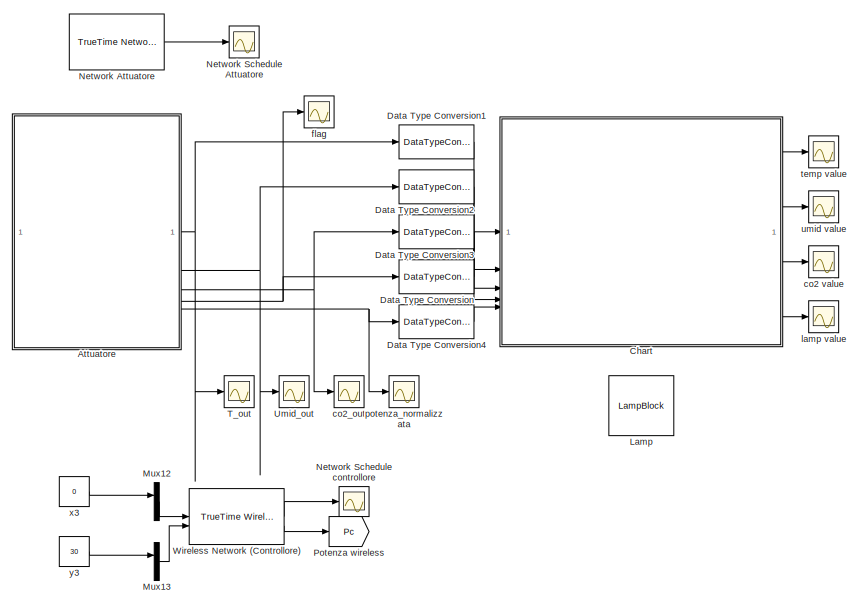
[diagram: root canvas - part 1/2, right side, full height]
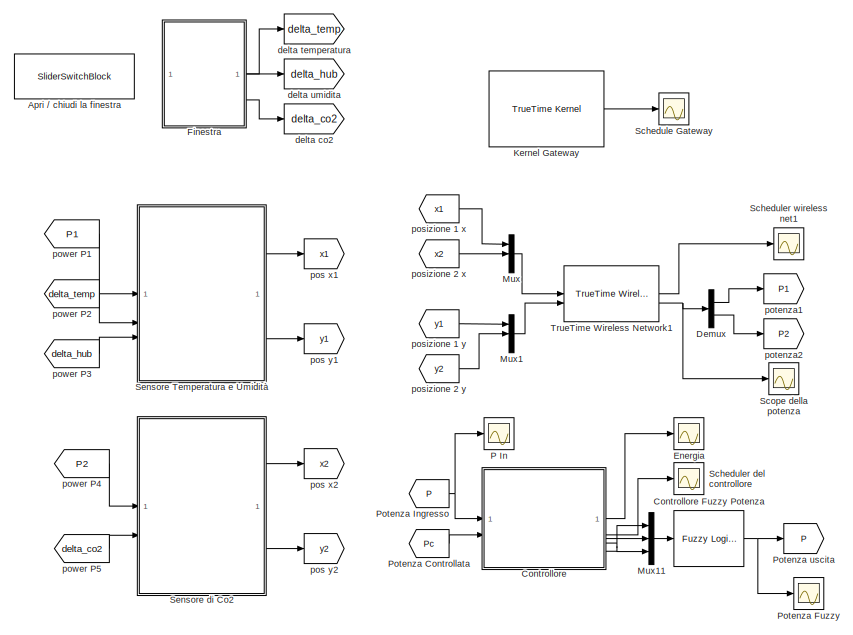
[diagram: root canvas - part 2/2, left side, full height]
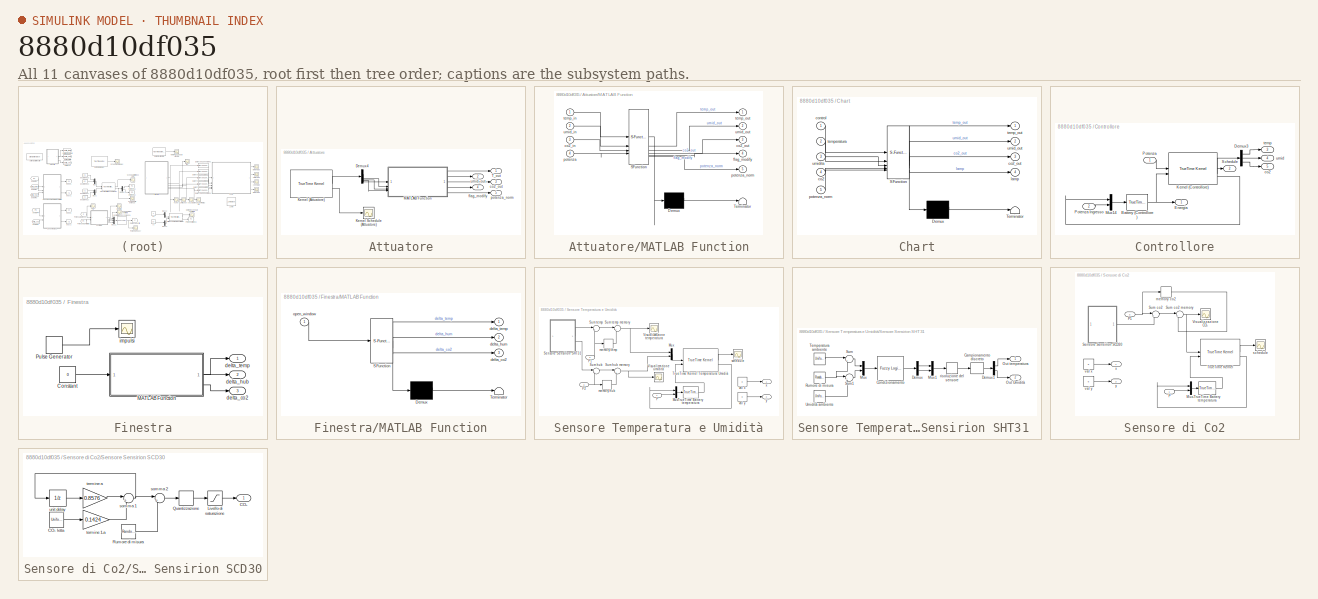
[diagram: thumbnail index - all 11 canvases of the model, root first then tree order]
MODEL slx_8880d10df035
KIND model
CONFIG AbsTol = auto
CONFIG EnableMultiTasking = off
CONFIG FixedStep = auto
CONFIG MaxStep = auto
CONFIG MinStep = auto
CONFIG RelTol = 1e-3
CONFIG SampleTimeConstraint = Unconstrained
CONFIG SolverName = VariableStepAuto
CONFIG StartTime = 0.0
CONFIG StopTime = 20
BLOCK [SliderSwitchBlock] Apri // chiudi la finestra
BLOCK [SubSystem] Attuatore
BLOCK [Demux] Attuatore/Demux4
BLOCK [Reference] Attuatore/Kernel (Attuatore)  REF=truetime/TrueTime Kernel  (lib defined in slx_0362a698a4ec)
  SourceBlock = truetime/TrueTime Kernel
BLOCK [Scope] Attuatore/Kernel Schedule (Attuatore)
  Floating = off
  NumInputPorts = 1
  ScopeSpecificationString = Simulink.scopes.TimeScopeBlockCfg('CurrentConfiguration', extmgr.ConfigurationSet(extmgr.Configuration('Core','General UI',true,'DisplayFullSourceName',false,'ShowMainToolbar',true),extmgr.Configuration('Sources','WiredSimulink',true,'DataLogging',false,'DataLoggingVariableName','ScopeData1','DataLoggingLimitDataPoints',false,'DataLoggingMaxPoints','5000','DataLoggingDecimateData',false,'DataLoggi...<+1535ch>
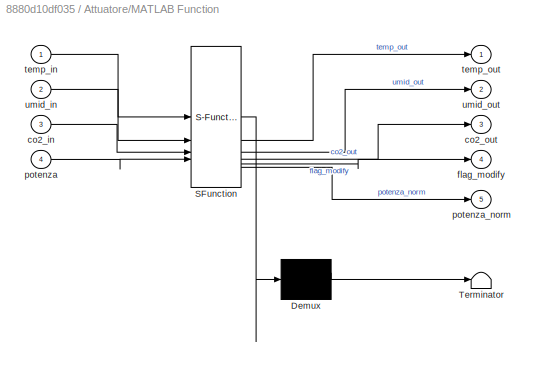
BLOCK [SubSystem] Attuatore/MATLAB Function
  ErrorFcn = Stateflow.Translate.translate
  PermitHierarchicalResolution = ExplicitOnly
  SFBlockType = MATLAB Function
  TreatAsAtomicUnit = on
BLOCK [Demux] Attuatore/MATLAB Function/ Demux 
  Outputs = 1
BLOCK [S-Function] Attuatore/MATLAB Function/ SFunction 
  EnableBusSupport = off
  FunctionName = sf_sfun
  PortCounts = [4 6]
  SFcnIsStateOwnerBlock = off
  SFunctionDeploymentMode = off
  Tag = Stateflow S-Function 3
BLOCK [Terminator] Attuatore/MATLAB Function/ Terminator 
BLOCK [Inport] Attuatore/MATLAB Function/co2_in
  Port = 3
BLOCK [Outport] Attuatore/MATLAB Function/co2_out
  Port = 3
BLOCK [Outport] Attuatore/MATLAB Function/flag_modify
  Port = 4
BLOCK [Inport] Attuatore/MATLAB Function/potenza
  Port = 4
BLOCK [Outport] Attuatore/MATLAB Function/potenza_norm
  Port = 5
BLOCK [Inport] Attuatore/MATLAB Function/temp_in
BLOCK [Outport] Attuatore/MATLAB Function/temp_out
BLOCK [Inport] Attuatore/MATLAB Function/umid_in
  Port = 2
BLOCK [Outport] Attuatore/MATLAB Function/umid_out
  Port = 2
BLOCK [Outport] Attuatore/T_out
BLOCK [Outport] Attuatore/co2_out
  Port = 3
BLOCK [Outport] Attuatore/flag_modify
  Port = 4
BLOCK [Outport] Attuatore/potenza_norm
  Port = 5
BLOCK [Outport] Attuatore/umid_out
  Port = 2
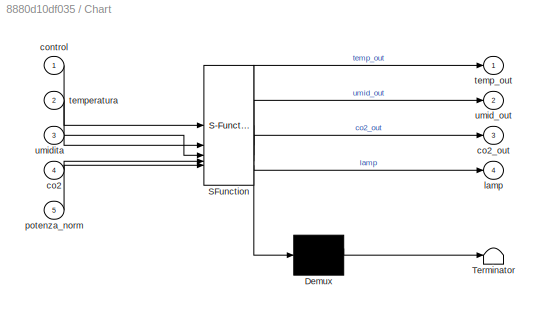
BLOCK [SubSystem] Chart
  ErrorFcn = Stateflow.Translate.translate
  PermitHierarchicalResolution = ExplicitOnly
  PortSchema = {"entries":[{"content":{"sides":[{"content":{"connectorIds":["In2","In3","In4","In1","In5"]},"type":"ConnectorPlacement.EquallySpacedRectSide","uuid":"3020dda5-3986-4acb-91a7-32414a76f8f2"},{"content":{"connectorIds":["Out1","Out2","Out3","Out4"],"side":"RIGHT"},"type":"ConnectorPlacement.EquallySpacedRectSide","uuid":"ed764817-7f74-49da-be9c-3f2773007b92"},{"content":{"side":"TOP"},"type":"Connec...<+267ch>
  SFBlockType = Chart
  TreatAsAtomicUnit = on
BLOCK [Demux] Chart/ Demux 
  Outputs = 1
BLOCK [S-Function] Chart/ SFunction 
  EnableBusSupport = off
  FunctionName = sf_sfun
  PortCounts = [5 5]
  SFcnIsStateOwnerBlock = off
  SFunctionDeploymentMode = off
  Tag = Stateflow S-Function 1
BLOCK [Terminator] Chart/ Terminator 
BLOCK [Inport] Chart/co2
  Port = 4
BLOCK [Outport] Chart/co2_out
  Port = 3
BLOCK [Inport] Chart/control
BLOCK [Outport] Chart/lamp
  Port = 4
BLOCK [Inport] Chart/potenza_norm
  Port = 5
BLOCK [Outport] Chart/temp_out
BLOCK [Inport] Chart/temperatura
  Port = 2
BLOCK [Outport] Chart/umid_out
  Port = 2
BLOCK [Inport] Chart/umidita
  Port = 3
BLOCK [SubSystem] Controllore
BLOCK [Reference] Controllore Fuzzy Potenza  REF=fuzblock/Fuzzy Logic   (lib defined in mdl_858b3b3e7478)
Controller
  SourceBlock = fuzblock/Fuzzy Logic \nController
  SourceType = Fuzzy Inference System
BLOCK [Reference] Controllore/Battery (Controllore)  REF=truetime/TrueTime Battery  (lib defined in slx_0362a698a4ec)
  SourceBlock = truetime/TrueTime Battery
BLOCK [Demux] Controllore/Demux3
  Outputs = 3
BLOCK [Outport] Controllore/Energia
BLOCK [Reference] Controllore/Kernel (Controllore)  REF=truetime/TrueTime Kernel  (lib defined in slx_0362a698a4ec)
  SourceBlock = truetime/TrueTime Kernel
BLOCK [Mux] Controllore/Mux14
  DisplayOption = bar
  Inputs = 2
BLOCK [Inport] Controllore/Potenza
BLOCK [Inport] Controllore/Potenza Ingresso
  Port = 2
BLOCK [Outport] Controllore/Schedule
  Port = 2
BLOCK [Outport] Controllore/co2
  NameLocation = right
  Port = 5
BLOCK [Outport] Controllore/temp
  NameLocation = right
  Port = 3
BLOCK [Outport] Controllore/umid
  NameLocation = right
  Port = 4
BLOCK [DataTypeConversion] Data Type Conversion
  OutDataTypeStr = uint8
  OutMax = [5]
  OutMin = [0]
  RndMeth = Floor
  SaturateOnIntegerOverflow = off
BLOCK [DataTypeConversion] Data Type Conversion1
  OutDataTypeStr = double
  OutMax = [5]
  OutMin = [0]
  RndMeth = Floor
  SaturateOnIntegerOverflow = off
BLOCK [DataTypeConversion] Data Type Conversion2
  OutDataTypeStr = double
  OutMax = [5]
  OutMin = [0]
  RndMeth = Floor
  SaturateOnIntegerOverflow = off
BLOCK [DataTypeConversion] Data Type Conversion3
  OutDataTypeStr = double
  OutMax = [5]
  OutMin = [0]
  RndMeth = Floor
  SaturateOnIntegerOverflow = off
BLOCK [DataTypeConversion] Data Type Conversion4
  OutDataTypeStr = double
  OutMax = [5]
  OutMin = [0]
  RndMeth = Floor
  SaturateOnIntegerOverflow = off
BLOCK [Demux] Demux
  Outputs = 2
BLOCK [Scope] Energia
  Floating = off
  NumInputPorts = 1
  ScopeSpecificationString = Simulink.scopes.TimeScopeBlockCfg('CurrentConfiguration', extmgr.ConfigurationSet(extmgr.Configuration('Core','General UI',true,'DisplayFullSourceName',false,'ShowMainToolbar',true),extmgr.Configuration('Sources','WiredSimulink',true,'DataLogging',false,'DataLoggingVariableName','ScopeData10','DataLoggingLimitDataPoints',false,'DataLoggingMaxPoints','5000','DataLoggingDecimateData',false,'DataLogg...<+2001ch>
BLOCK [SubSystem] Finestra
BLOCK [Constant] Finestra/Constant
  Value = 0
BLOCK [SubSystem] Finestra/MATLAB Function
  ErrorFcn = Stateflow.Translate.translate
  PermitHierarchicalResolution = ExplicitOnly
  SFBlockType = MATLAB Function
  TreatAsAtomicUnit = on
BLOCK [Demux] Finestra/MATLAB Function/ Demux 
  Outputs = 1
BLOCK [S-Function] Finestra/MATLAB Function/ SFunction 
  EnableBusSupport = off
  FunctionName = sf_sfun
  PortCounts = [1 4]
  SFcnIsStateOwnerBlock = off
  SFunctionDeploymentMode = off
  Tag = Stateflow S-Function 2
BLOCK [Terminator] Finestra/MATLAB Function/ Terminator 
BLOCK [Outport] Finestra/MATLAB Function/delta_co2
  Port = 3
BLOCK [Outport] Finestra/MATLAB Function/delta_hum
  Port = 2
BLOCK [Outport] Finestra/MATLAB Function/delta_temp
BLOCK [Inport] Finestra/MATLAB Function/open_window
BLOCK [DiscretePulseGenerator] Finestra/Pulse Generator
  Commented = on
  Period = 10
  PulseType = Time based
  PulseWidth = 5
BLOCK [Outport] Finestra/delta_co2
  Port = 3
BLOCK [Outport] Finestra/delta_hub
  Port = 2
BLOCK [Outport] Finestra/delta_temp
BLOCK [Scope] Finestra/impulsi
  Floating = off
  NumInputPorts = 1
  ScopeSpecificationString = Simulink.scopes.TimeScopeBlockCfg('CurrentConfiguration', extmgr.ConfigurationSet(extmgr.Configuration('Core','General UI',true,'DisplayFullSourceName',false,'ShowMainToolbar',true),extmgr.Configuration('Sources','WiredSimulink',true,'DataLogging',false,'DataLoggingVariableName','ScopeData17','DataLoggingLimitDataPoints',false,'DataLoggingMaxPoints','5000','DataLoggingDecimateData',false,'DataLogg...<+1536ch>
BLOCK [Reference] Kernel Gateway  REF=truetime/TrueTime Kernel  (lib defined in slx_0362a698a4ec)
  SourceBlock = truetime/TrueTime Kernel
BLOCK [LampBlock] Lamp
  LabelPosition = Hide
BLOCK [Mux] Mux
  DisplayOption = bar
  Inputs = 3
BLOCK [Mux] Mux1
  DisplayOption = bar
  Inputs = 3
BLOCK [Mux] Mux11
  DisplayOption = bar
  Inputs = 3
BLOCK [Mux] Mux12
  DisplayOption = bar
  Inputs = 2
BLOCK [Mux] Mux13
  DisplayOption = bar
  Inputs = 2
BLOCK [Reference] Network Attuatore  REF=truetime/TrueTime Network  (lib defined in slx_0362a698a4ec)
  SourceBlock = truetime/TrueTime Network
  SourceType = Real-Time Network
BLOCK [Scope] Network Schedule Attuatore
  Floating = off
  NumInputPorts = 1
  ScopeSpecificationString = Simulink.scopes.TimeScopeBlockCfg('CurrentConfiguration', extmgr.ConfigurationSet(extmgr.Configuration('Core','General UI',true,'DisplayFullSourceName',false,'ShowMainToolbar',true),extmgr.Configuration('Sources','WiredSimulink',true,'DataLogging',false,'DataLoggingVariableName','ScopeData13','DataLoggingLimitDataPoints',false,'DataLoggingMaxPoints','5000','DataLoggingDecimateData',false,'DataLogg...<+2002ch>
BLOCK [Scope] Network Schedule controllore
  Floating = off
  NameLocation = top
  NumInputPorts = 1
  ScopeSpecificationString = Simulink.scopes.TimeScopeBlockCfg('CurrentConfiguration', extmgr.ConfigurationSet(extmgr.Configuration('Core','General UI',true,'DisplayFullSourceName',false,'ShowMainToolbar',true,'FigureColor','[0.156862745098039 0.156862745098039 0.156862745098039]'),extmgr.Configuration('Sources','WiredSimulink',true,'DataLogging',true,'DataLoggingVariableName','ScopeData8','DataLoggingLimitDataPoints',false,'...<+2092ch>
BLOCK [Scope] P In
  Floating = off
  NumInputPorts = 1
  ScopeSpecificationString = Simulink.scopes.TimeScopeBlockCfg('CurrentConfiguration', extmgr.ConfigurationSet(extmgr.Configuration('Core','General UI',true,'DisplayFullSourceName',false,'ShowMainToolbar',true),extmgr.Configuration('Sources','WiredSimulink',true,'DataLogging',false,'DataLoggingVariableName','ScopeData9','DataLoggingLimitDataPoints',false,'DataLoggingMaxPoints','5000','DataLoggingDecimateData',false,'DataLoggi...<+2001ch>
BLOCK [From] Potenza Controllata
  GotoTag = Pc
BLOCK [Scope] Potenza Fuzzy
  Floating = off
  NumInputPorts = 1
  ScopeSpecificationString = Simulink.scopes.TimeScopeBlockCfg('CurrentConfiguration', extmgr.ConfigurationSet(extmgr.Configuration('Core','General UI',true,'DisplayFullSourceName',false,'ShowMainToolbar',true,'FigureColor',[0.125490196078431 0.125490196078431 0.125490196078431]),extmgr.Configuration('Sources','WiredSimulink',true,'DataLogging',false,'DataLoggingVariableName','ScopeData7','DataLoggingLimitDataPoints',false,'D...<+2251ch>
BLOCK [From] Potenza Ingresso
  GotoTag = P
BLOCK [Goto] Potenza uscita
  GotoTag = P
BLOCK [Goto] Potenza wireless
  GotoTag = Pc
BLOCK [Scope] Schedule Gateway
  Floating = off
  NumInputPorts = 1
  ScopeSpecificationString = Simulink.scopes.TimeScopeBlockCfg('CurrentConfiguration', extmgr.ConfigurationSet(extmgr.Configuration('Core','General UI',true,'DisplayFullSourceName',false,'ShowMainToolbar',true),extmgr.Configuration('Sources','WiredSimulink',true,'DataLogging',false,'DataLoggingVariableName','ScopeData12','DataLoggingLimitDataPoints',false,'DataLoggingMaxPoints','5000','DataLoggingDecimateData',false,'DataLogg...<+1536ch>
BLOCK [Scope] Scheduler del controllore
  Floating = off
  NumInputPorts = 1
  ScopeSpecificationString = Simulink.scopes.TimeScopeBlockCfg('CurrentConfiguration', extmgr.ConfigurationSet(extmgr.Configuration('Core','General UI',true,'DisplayFullSourceName',false,'ShowMainToolbar',true),extmgr.Configuration('Sources','WiredSimulink',true,'DataLogging',false,'DataLoggingVariableName','ScopeData11','DataLoggingLimitDataPoints',false,'DataLoggingMaxPoints','5000','DataLoggingDecimateData',false,'DataLogg...<+2001ch>
BLOCK [Scope] Scheduler wireless net1
  Floating = off
  NumInputPorts = 1
  ScopeSpecificationString = Simulink.scopes.TimeScopeBlockCfg('CurrentConfiguration', extmgr.ConfigurationSet(extmgr.Configuration('Core','General UI',true,'DisplayFullSourceName',false,'ShowMainToolbar',true),extmgr.Configuration('Sources','WiredSimulink',true,'DataLogging',false,'DataLoggingVariableName','ScopeData5','DataLoggingLimitDataPoints',false,'DataLoggingMaxPoints','5000','DataLoggingDecimateData',false,'DataLoggi...<+1535ch>
BLOCK [Scope] Scope della potenza
  Floating = off
  NumInputPorts = 1
  ScopeSpecificationString = Simulink.scopes.TimeScopeBlockCfg('CurrentConfiguration', extmgr.ConfigurationSet(extmgr.Configuration('Core','General UI',true,'DisplayFullSourceName',false,'ShowMainToolbar',true,'FigureColor',[0.129411764705882 0.129411764705882 0.129411764705882]),extmgr.Configuration('Sources','WiredSimulink',true,'DataLogging',false,'DataLoggingVariableName','ScopeData4','DataLoggingLimitDataPoints',false,'D...<+2767ch>
BLOCK [SubSystem] Sensore Temperatura e Umidità
BLOCK [Mux] Sensore Temperatura e Umidità/Mux
  DisplayOption = bar
  Inputs = 2
BLOCK [Mux] Sensore Temperatura e Umidità/Mux2
  DisplayOption = bar
  Inputs = 2
BLOCK [Inport] Sensore Temperatura e Umidità/P
BLOCK [Inport] Sensore Temperatura e Umidità/P1
  Port = 2
BLOCK [Inport] Sensore Temperatura e Umidità/P2
  Port = 3
BLOCK [SubSystem] Sensore Temperatura e Umidità/Sensore Sensirion SHT31 
BLOCK [ZeroOrderHold] Sensore Temperatura e Umidità/Sensore Sensirion SHT31 /Campionamento discreto
  NameLocation = top
  SampleTime = 2
BLOCK [Reference] Sensore Temperatura e Umidità/Sensore Sensirion SHT31 /Condizionamento  REF=fuzblock/Fuzzy Logic   (lib defined in mdl_858b3b3e7478)
Controller
  SourceBlock = fuzblock/Fuzzy Logic \nController
  SourceType = Fuzzy Inference System
BLOCK [Demux] Sensore Temperatura e Umidità/Sensore Sensirion SHT31 /Demux
  Outputs = 2
BLOCK [Demux] Sensore Temperatura e Umidità/Sensore Sensirion SHT31 /Demux1
  Outputs = 2
BLOCK [Mux] Sensore Temperatura e Umidità/Sensore Sensirion SHT31 /Mux
  DisplayOption = bar
  Inputs = 2
BLOCK [Mux] Sensore Temperatura e Umidità/Sensore Sensirion SHT31 /Mux1
  DisplayOption = bar
  Inputs = 2
BLOCK [Outport] Sensore Temperatura e Umidità/Sensore Sensirion SHT31 /Out Umidità
  Port = 2
BLOCK [Outport] Sensore Temperatura e Umidità/Sensore Sensirion SHT31 /Out temperatura
BLOCK [RandomNumber] Sensore Temperatura e Umidità/Sensore Sensirion SHT31 /Rumore di misura
  SampleTime = 200
  Seed = 2
  Variance = 2
BLOCK [Sum] Sensore Temperatura e Umidità/Sensore Sensirion SHT31 /Sum
  Inputs = |++
BLOCK [Sum] Sensore Temperatura e Umidità/Sensore Sensirion SHT31 /Sum1
  Inputs = |++
BLOCK [UniformRandomNumber] Sensore Temperatura e Umidità/Sensore Sensirion SHT31 /Temperatura ambiente
  Maximum = 37
  Minimum = 15
  SampleTime = 5
BLOCK [UniformRandomNumber] Sensore Temperatura e Umidità/Sensore Sensirion SHT31 /Umidità ambiente
  Maximum = 100
  Minimum = 0
  SampleTime = 5
  Seed = 2
BLOCK [Quantizer] Sensore Temperatura e Umidità/Sensore Sensirion SHT31 /risoluzione del sensore
  QuantizationInterval = 0.1
BLOCK [Sum] Sensore Temperatura e Umidità/Sum hub
  Inputs = |++
  NameLocation = top
BLOCK [Sum] Sensore Temperatura e Umidità/Sum hub memory
  Inputs = |++
  NameLocation = top
BLOCK [Sum] Sensore Temperatura e Umidità/Sum temp
  Inputs = |++
  NameLocation = top
BLOCK [Sum] Sensore Temperatura e Umidità/Sum temp memory
  Inputs = |++
  NameLocation = top
BLOCK [Reference] Sensore Temperatura e Umidità/TrueTime Battery temperatura  REF=truetime/TrueTime Battery  (lib defined in slx_0362a698a4ec)
  SourceBlock = truetime/TrueTime Battery
BLOCK [Reference] Sensore Temperatura e Umidità/TrueTime Kernel Temperatura Umidià  REF=truetime/TrueTime Kernel  (lib defined in slx_0362a698a4ec)
  SourceBlock = truetime/TrueTime Kernel
BLOCK [Scope] Sensore Temperatura e Umidità/Visualizzazione temperatura
  ContainerLayout = {"WindowBounds":[128,48,1280,768]}
  Floating = off
  NumInputPorts = 1
  ScopeSpecificationString = Simulink.scopes.TimeScopeBlockCfg('CurrentConfiguration', extmgr.ConfigurationSet(extmgr.Configuration('Core','General UI',true,'DisplayFullSourceName',false,'ShowMainToolbar',true,'FigureColor',[0.125490196078431 0.125490196078431 0.125490196078431]),extmgr.Configuration('Sources','WiredSimulink',true,'DataLogging',false,'DataLoggingVariableName','ScopeData','DataLoggingLimitDataPoints',false,'Da...<+2257ch>
BLOCK [Scope] Sensore Temperatura e Umidità/Visualizzazione umidità
  ContainerLayout = {"WindowBounds":[93,40,1280,824]}
  Floating = off
  NumInputPorts = 1
  ScopeSpecificationString = Simulink.scopes.TimeScopeBlockCfg('CurrentConfiguration', extmgr.ConfigurationSet(extmgr.Configuration('Core','General UI',true,'DisplayFullSourceName',false,'ShowMainToolbar',true,'FigureColor','[0.129411764705882 0.129411764705882 0.129411764705882]'),extmgr.Configuration('Sources','WiredSimulink',true,'DataLogging',false,'DataLoggingVariableName','ScopeData1','DataLoggingLimitDataPoints',false,...<+2127ch>
BLOCK [Memory] Sensore Temperatura e Umidità/memory hub
BLOCK [Memory] Sensore Temperatura e Umidità/memory temp
BLOCK [Scope] Sensore Temperatura e Umidità/schedule
  Floating = off
  NumInputPorts = 1
  ScopeSpecificationString = Simulink.scopes.TimeScopeBlockCfg('CurrentConfiguration', extmgr.ConfigurationSet(extmgr.Configuration('Core','General UI',true,'DisplayFullSourceName',false,'ShowMainToolbar',true),extmgr.Configuration('Sources','WiredSimulink',true,'DataLogging',false,'DataLoggingVariableName','ScopeData3','DataLoggingLimitDataPoints',false,'DataLoggingMaxPoints','5000','DataLoggingDecimateData',false,'DataLoggi...<+1535ch>
BLOCK [Constant] Sensore Temperatura e Umidità/val x
  Value = 0
BLOCK [Constant] Sensore Temperatura e Umidità/val y
  Value = 0
BLOCK [Outport] Sensore Temperatura e Umidità/x
BLOCK [Outport] Sensore Temperatura e Umidità/y
  Port = 2
BLOCK [SubSystem] Sensore di Co2
BLOCK [Mux] Sensore di Co2/Mux2
  DisplayOption = bar
  Inputs = 2
BLOCK [Inport] Sensore di Co2/P
BLOCK [Inport] Sensore di Co2/P1
  Port = 2
BLOCK [SubSystem] Sensore di Co2/Sensore Sensirion SCD30
BLOCK [Outport] Sensore di Co2/Sensore Sensirion SCD30/CO₂ 
BLOCK [UniformRandomNumber] Sensore di Co2/Sensore Sensirion SCD30/CO₂ letta
  Maximum = 1200
  Minimum = 800
  SampleTime = 1
BLOCK [Saturate] Sensore di Co2/Sensore Sensirion SCD30/Livello di saturazione
  LowerLimit = 800
  NameLocation = top
  UpperLimit = 10000
BLOCK [Quantizer] Sensore di Co2/Sensore Sensirion SCD30/Quantizzazione
  QuantizationInterval = 2
BLOCK [RandomNumber] Sensore di Co2/Sensore Sensirion SCD30/Rumore di misura
  SampleTime = 10
  Seed = 2
  Variance = 900
BLOCK [Sum] Sensore di Co2/Sensore Sensirion SCD30/somma 1
  Inputs = |++
  NameLocation = top
BLOCK [Sum] Sensore di Co2/Sensore Sensirion SCD30/somma 2
  Inputs = |++
  NameLocation = top
BLOCK [Gain] Sensore di Co2/Sensore Sensirion SCD30/termine 1-a
  Gain = 0.1424
BLOCK [Gain] Sensore di Co2/Sensore Sensirion SCD30/termine a
  Gain = 0.8576
  NameLocation = top
BLOCK [UnitDelay] Sensore di Co2/Sensore Sensirion SCD30/unit delay
  HasFrameUpgradeWarning = on
  InitialCondition = 1000
  NameLocation = top
  SampleTime = -1
BLOCK [Sum] Sensore di Co2/Sum co2
  Inputs = |++
  NameLocation = top
BLOCK [Sum] Sensore di Co2/Sum co2 memory
  Inputs = |++
  NameLocation = top
BLOCK [Reference] Sensore di Co2/TrueTime Battery temperatura  REF=truetime/TrueTime Battery  (lib defined in slx_0362a698a4ec)
  SourceBlock = truetime/TrueTime Battery
BLOCK [Reference] Sensore di Co2/TrueTime Kernel  REF=truetime/TrueTime Kernel  (lib defined in slx_0362a698a4ec)
  SourceBlock = truetime/TrueTime Kernel
BLOCK [Scope] Sensore di Co2/Visualizzazione CO₂ 
  ContainerLayout = {"WindowBounds":[93,40,1280,824]}
  Floating = off
  NumInputPorts = 1
  ScopeSpecificationString = Simulink.scopes.TimeScopeBlockCfg('CurrentConfiguration', extmgr.ConfigurationSet(extmgr.Configuration('Core','General UI',true,'DisplayFullSourceName',false,'ShowMainToolbar',true,'FigureColor','[0.129411764705882 0.129411764705882 0.129411764705882]'),extmgr.Configuration('Sources','WiredSimulink',true,'DataLogging',false,'DataLoggingVariableName','ScopeData2','DataLoggingLimitDataPoints',false,...<+2133ch>
BLOCK [Memory] Sensore di Co2/memory co2
BLOCK [Scope] Sensore di Co2/schedule
  Floating = off
  NumInputPorts = 1
  ScopeSpecificationString = Simulink.scopes.TimeScopeBlockCfg('CurrentConfiguration', extmgr.ConfigurationSet(extmgr.Configuration('Core','General UI',true,'DisplayFullSourceName',false,'ShowMainToolbar',true),extmgr.Configuration('Sources','WiredSimulink',true,'DataLogging',false,'DataLoggingVariableName','ScopeData6','DataLoggingLimitDataPoints',false,'DataLoggingMaxPoints','5000','DataLoggingDecimateData',false,'DataLoggi...<+1535ch>
BLOCK [Constant] Sensore di Co2/val x
  Value = 5
BLOCK [Constant] Sensore di Co2/val y
  Value = 5
BLOCK [Outport] Sensore di Co2/x
BLOCK [Outport] Sensore di Co2/y
  Port = 2
BLOCK [Scope] T_out
  Floating = off
  NumInputPorts = 1
  ScopeSpecificationString = Simulink.scopes.TimeScopeBlockCfg('CurrentConfiguration', extmgr.ConfigurationSet(extmgr.Configuration('Core','General UI',true,'DisplayFullSourceName',false,'ShowMainToolbar',true,'FigureColor',[0.129411764705882 0.129411764705882 0.129411764705882]),extmgr.Configuration('Sources','WiredSimulink',true,'DataLogging',false,'DataLoggingVariableName','ScopeData20','DataLoggingLimitDataPoints',false,'...<+2212ch>
BLOCK [Reference] TrueTime Wireless Network1  REF=truetime/TrueTime Wireless   (lib defined in slx_0362a698a4ec)
Network
  SourceBlock = truetime/TrueTime Wireless \nNetwork
  SourceType = Wireless Network
BLOCK [Scope] Umid_out
  Floating = off
  NumInputPorts = 1
  ScopeSpecificationString = Simulink.scopes.TimeScopeBlockCfg('CurrentConfiguration', extmgr.ConfigurationSet(extmgr.Configuration('Core','General UI',true,'DisplayFullSourceName',false,'ShowMainToolbar',true),extmgr.Configuration('Sources','WiredSimulink',true,'DataLogging',false,'DataLoggingVariableName','ScopeData19','DataLoggingLimitDataPoints',false,'DataLoggingMaxPoints','5000','DataLoggingDecimateData',false,'DataLogg...<+1536ch>
BLOCK [Reference] Wireless Network (Controllore)  REF=truetime/TrueTime Wireless   (lib defined in slx_0362a698a4ec)
Network
  SourceBlock = truetime/TrueTime Wireless \nNetwork
  SourceType = Wireless Network
BLOCK [Scope] co2 value
  Floating = off
  NumInputPorts = 1
  ScopeSpecificationString = Simulink.scopes.TimeScopeBlockCfg('CurrentConfiguration', extmgr.ConfigurationSet(extmgr.Configuration('Core','General UI',true,'DisplayFullSourceName',false,'ShowMainToolbar',true,'FigureColor',[0.125490196078431 0.125490196078431 0.125490196078431]),extmgr.Configuration('Sources','WiredSimulink',true,'DataLogging',false,'DataLoggingVariableName','ScopeData14','DataLoggingLimitDataPoints',false,'...<+2208ch>
BLOCK [Scope] co2_out
  Floating = off
  NumInputPorts = 1
  ScopeSpecificationString = Simulink.scopes.TimeScopeBlockCfg('CurrentConfiguration', extmgr.ConfigurationSet(extmgr.Configuration('Core','General UI',true,'DisplayFullSourceName',false,'ShowMainToolbar',true),extmgr.Configuration('Sources','WiredSimulink',true,'DataLogging',false,'DataLoggingVariableName','ScopeData22','DataLoggingLimitDataPoints',false,'DataLoggingMaxPoints','5000','DataLoggingDecimateData',false,'DataLogg...<+1536ch>
BLOCK [Goto] delta co2
  GotoTag = delta_co2
BLOCK [Goto] delta temperatura
  GotoTag = delta_temp
BLOCK [Goto] delta umidita
  GotoTag = delta_hub
BLOCK [Scope] flag
  Floating = off
  NameLocation = right
  NumInputPorts = 1
  ScopeSpecificationString = Simulink.scopes.TimeScopeBlockCfg('CurrentConfiguration', extmgr.ConfigurationSet(extmgr.Configuration('Core','General UI',true,'DisplayFullSourceName',false,'ShowMainToolbar',true,'FigureColor',[0.129411764705882 0.129411764705882 0.129411764705882]),extmgr.Configuration('Sources','WiredSimulink',true,'DataLogging',false,'DataLoggingVariableName','ScopeData23','DataLoggingLimitDataPoints',false,'...<+2229ch>
BLOCK [Scope] lamp value
  Floating = off
  NumInputPorts = 1
  ScopeSpecificationString = Simulink.scopes.TimeScopeBlockCfg('CurrentConfiguration', extmgr.ConfigurationSet(extmgr.Configuration('Core','General UI',true,'DisplayFullSourceName',false,'ShowMainToolbar',true,'FigureColor',[0.125490196078431 0.125490196078431 0.125490196078431]),extmgr.Configuration('Sources','WiredSimulink',true,'DataLogging',false,'DataLoggingVariableName','ScopeData18','DataLoggingLimitDataPoints',false,'...<+2214ch>
BLOCK [Goto] pos x1
  GotoTag = x1
BLOCK [Goto] pos x2
  GotoTag = x2
BLOCK [Goto] pos y1
  GotoTag = y1
BLOCK [Goto] pos y2
  GotoTag = y2
BLOCK [From] posizione 1 x
  GotoTag = x1
BLOCK [From] posizione 1 y
  GotoTag = y1
BLOCK [From] posizione 2 x
  GotoTag = x2
BLOCK [From] posizione 2 y
  GotoTag = y2
BLOCK [Goto] potenza1
  GotoTag = P1
BLOCK [Goto] potenza2
  GotoTag = P2
BLOCK [Scope] potenza_normalizzata
  Floating = off
  NameLocation = right
  NumInputPorts = 1
  ScopeSpecificationString = Simulink.scopes.TimeScopeBlockCfg('CurrentConfiguration', extmgr.ConfigurationSet(extmgr.Configuration('Core','General UI',true,'DisplayFullSourceName',false,'ShowMainToolbar',true,'FigureColor',[0.129411764705882 0.129411764705882 0.129411764705882]),extmgr.Configuration('Sources','WiredSimulink',true,'DataLogging',false,'DataLoggingVariableName','ScopeData21','DataLoggingLimitDataPoints',false,'...<+2216ch>
BLOCK [From] power P1
  GotoTag = P1
BLOCK [From] power P2
  GotoTag = delta_temp
BLOCK [From] power P3
  GotoTag = delta_hub
BLOCK [From] power P4
  GotoTag = P2
BLOCK [From] power P5
  GotoTag = delta_co2
BLOCK [Scope] temp value
  Floating = off
  NumInputPorts = 1
  ScopeSpecificationString = Simulink.scopes.TimeScopeBlockCfg('CurrentConfiguration', extmgr.ConfigurationSet(extmgr.Configuration('Core','General UI',true,'DisplayFullSourceName',false,'ShowMainToolbar',true,'FigureColor',[0.125490196078431 0.125490196078431 0.125490196078431]),extmgr.Configuration('Sources','WiredSimulink',true,'DataLogging',false,'DataLoggingVariableName','ScopeData16','DataLoggingLimitDataPoints',false,'...<+2225ch>
BLOCK [Scope] umid value
  Floating = off
  NumInputPorts = 1
  ScopeSpecificationString = Simulink.scopes.TimeScopeBlockCfg('CurrentConfiguration', extmgr.ConfigurationSet(extmgr.Configuration('Core','General UI',true,'DisplayFullSourceName',false,'ShowMainToolbar',true,'FigureColor',[0.125490196078431 0.125490196078431 0.125490196078431]),extmgr.Configuration('Sources','WiredSimulink',true,'DataLogging',false,'DataLoggingVariableName','ScopeData15','DataLoggingLimitDataPoints',false,'...<+2209ch>
BLOCK [Constant] x3
  Value = 0
BLOCK [Constant] y3
  Value = 30
LINE Attuatore/Demux4:1 -> Attuatore/MATLAB Function:1
LINE Attuatore/Demux4:2 -> Attuatore/MATLAB Function:2
LINE Attuatore/Demux4:3 -> Attuatore/MATLAB Function:3
LINE Attuatore/Demux4:4 -> Attuatore/MATLAB Function:4
LINE Attuatore/Kernel (Attuatore):1 -> Attuatore/Demux4:1
LINE Attuatore/Kernel (Attuatore):2 -> Attuatore/Kernel Schedule (Attuatore):1
LINE Attuatore/MATLAB Function:1 -> Attuatore/T_out:1
LINE Attuatore/MATLAB Function:2 -> Attuatore/umid_out:1
LINE Attuatore/MATLAB Function:3 -> Attuatore/co2_out:1
LINE Attuatore/MATLAB Function:4 -> Attuatore/flag_modify:1
LINE Attuatore/MATLAB Function:5 -> Attuatore/potenza_norm:1
NET Attuatore:1 -> Data Type Conversion1:1, T_out:1
NET Attuatore:2 -> Data Type Conversion2:1, Umid_out:1
NET Attuatore:3 -> Data Type Conversion3:1, co2_out:1
NET Attuatore:4 -> Data Type Conversion:1, flag:1
NET Attuatore:5 -> Data Type Conversion4:1, potenza_normalizzata:1
LINE Chart:1 -> temp value:1
LINE Chart:2 -> umid value:1
LINE Chart:3 -> co2 value:1
LINE Chart:4 -> lamp value:1
NET Controllore Fuzzy Potenza:1 -> Potenza Fuzzy:1, Potenza uscita:1
NET Controllore/Battery (Controllore):1 -> Controllore/Energia:1, Controllore/Kernel (Controllore):2
LINE Controllore/Demux3:1 -> Controllore/temp:1
LINE Controllore/Demux3:2 -> Controllore/umid:1
LINE Controllore/Demux3:3 -> Controllore/co2:1
LINE Controllore/Kernel (Controllore):1 -> Controllore/Demux3:1
LINE Controllore/Kernel (Controllore):2 -> Controllore/Schedule:1
LINE Controllore/Kernel (Controllore):3 -> Controllore/Mux14:1
LINE Controllore/Mux14:1 -> Controllore/Battery (Controllore):1
LINE Controllore/Potenza Ingresso:1 -> Controllore/Mux14:2
LINE Controllore/Potenza:1 -> Controllore/Kernel (Controllore):1
LINE Controllore:1 -> Energia:1
LINE Controllore:2 -> Scheduler del controllore:1
LINE Controllore:3 -> Mux11:1
LINE Controllore:4 -> Mux11:2
LINE Controllore:5 -> Mux11:3
LINE Data Type Conversion1:1 -> Chart:2
LINE Data Type Conversion2:1 -> Chart:3
LINE Data Type Conversion3:1 -> Chart:4
LINE Data Type Conversion4:1 -> Chart:5
LINE Data Type Conversion:1 -> Chart:1
LINE Demux:1 -> potenza1:1
LINE Demux:2 -> potenza2:1
LINE Finestra/Constant:1 -> Finestra/MATLAB Function:1
LINE Finestra/MATLAB Function:1 -> Finestra/delta_temp:1
LINE Finestra/MATLAB Function:2 -> Finestra/delta_hub:1
LINE Finestra/MATLAB Function:3 -> Finestra/delta_co2:1
LINE Finestra/Pulse Generator:1 -> Finestra/impulsi:1
LINE Finestra:1 -> delta temperatura:1
LINE Finestra:2 -> delta umidita:1
LINE Finestra:3 -> delta co2:1
LINE Kernel Gateway:1 -> Schedule Gateway:1
LINE Mux11:1 -> Controllore Fuzzy Potenza:1
LINE Mux12:1 -> Wireless Network (Controllore):1
LINE Mux13:1 -> Wireless Network (Controllore):2
LINE Mux1:1 -> TrueTime Wireless Network1:2
LINE Mux:1 -> TrueTime Wireless Network1:1
LINE Network Attuatore:1 -> Network Schedule Attuatore:1
LINE Potenza Controllata:1 -> Controllore:2
NET Potenza Ingresso:1 -> Controllore:1, P In:1
LINE Sensore Temperatura e Umidità/Mux2:1 -> Sensore Temperatura e Umidità/TrueTime Battery temperatura:1
LINE Sensore Temperatura e Umidità/Mux:1 -> Sensore Temperatura e Umidità/TrueTime Kernel Temperatura Umidià:1
NET Sensore Temperatura e Umidità/P1:1 -> Sensore Temperatura e Umidità/Sum temp:2, Sensore Temperatura e Umidità/memory temp:1
NET Sensore Temperatura e Umidità/P2:1 -> Sensore Temperatura e Umidità/Sum hub:2, Sensore Temperatura e Umidità/memory hub:1
LINE Sensore Temperatura e Umidità/P:1 -> Sensore Temperatura e Umidità/Mux2:2
LINE Sensore Temperatura e Umidità/Sensore Sensirion SHT31 /Campionamento discreto:1 -> Sensore Temperatura e Umidità/Sensore Sensirion SHT31 /Demux1:1
LINE Sensore Temperatura e Umidità/Sensore Sensirion SHT31 /Condizionamento:1 -> Sensore Temperatura e Umidità/Sensore Sensirion SHT31 /Demux:1
LINE Sensore Temperatura e Umidità/Sensore Sensirion SHT31 /Demux1:1 -> Sensore Temperatura e Umidità/Sensore Sensirion SHT31 /Out temperatura:1
LINE Sensore Temperatura e Umidità/Sensore Sensirion SHT31 /Demux1:2 -> Sensore Temperatura e Umidità/Sensore Sensirion SHT31 /Out Umidità:1
LINE Sensore Temperatura e Umidità/Sensore Sensirion SHT31 /Demux:1 -> Sensore Temperatura e Umidità/Sensore Sensirion SHT31 /Mux1:1
LINE Sensore Temperatura e Umidità/Sensore Sensirion SHT31 /Demux:2 -> Sensore Temperatura e Umidità/Sensore Sensirion SHT31 /Mux1:2
LINE Sensore Temperatura e Umidità/Sensore Sensirion SHT31 /Mux1:1 -> Sensore Temperatura e Umidità/Sensore Sensirion SHT31 /risoluzione del sensore:1
LINE Sensore Temperatura e Umidità/Sensore Sensirion SHT31 /Mux:1 -> Sensore Temperatura e Umidità/Sensore Sensirion SHT31 /Condizionamento:1
NET Sensore Temperatura e Umidità/Sensore Sensirion SHT31 /Rumore di misura:1 -> Sensore Temperatura e Umidità/Sensore Sensirion SHT31 /Sum1:1, Sensore Temperatura e Umidità/Sensore Sensirion SHT31 /Sum:2
LINE Sensore Temperatura e Umidità/Sensore Sensirion SHT31 /Sum1:1 -> Sensore Temperatura e Umidità/Sensore Sensirion SHT31 /Mux:2
LINE Sensore Temperatura e Umidità/Sensore Sensirion SHT31 /Sum:1 -> Sensore Temperatura e Umidità/Sensore Sensirion SHT31 /Mux:1
LINE Sensore Temperatura e Umidità/Sensore Sensirion SHT31 /Temperatura ambiente:1 -> Sensore Temperatura e Umidità/Sensore Sensirion SHT31 /Sum:1
LINE Sensore Temperatura e Umidità/Sensore Sensirion SHT31 /Umidità ambiente:1 -> Sensore Temperatura e Umidità/Sensore Sensirion SHT31 /Sum1:2
LINE Sensore Temperatura e Umidità/Sensore Sensirion SHT31 /risoluzione del sensore:1 -> Sensore Temperatura e Umidità/Sensore Sensirion SHT31 /Campionamento discreto:1
LINE Sensore Temperatura e Umidità/Sensore Sensirion SHT31 :1 -> Sensore Temperatura e Umidità/Sum temp:1
LINE Sensore Temperatura e Umidità/Sensore Sensirion SHT31 :2 -> Sensore Temperatura e Umidità/Sum hub:1
NET Sensore Temperatura e Umidità/Sum hub memory:1 -> Sensore Temperatura e Umidità/Mux:2, Sensore Temperatura e Umidità/Visualizzazione umidità:1
LINE Sensore Temperatura e Umidità/Sum hub:1 -> Sensore Temperatura e Umidità/Sum hub memory:1
NET Sensore Temperatura e Umidità/Sum temp memory:1 -> Sensore Temperatura e Umidità/Mux:1, Sensore Temperatura e Umidità/Visualizzazione temperatura:1
LINE Sensore Temperatura e Umidità/Sum temp:1 -> Sensore Temperatura e Umidità/Sum temp memory:1
LINE Sensore Temperatura e Umidità/TrueTime Battery temperatura:1 -> Sensore Temperatura e Umidità/TrueTime Kernel Temperatura Umidià:2
LINE Sensore Temperatura e Umidità/TrueTime Kernel Temperatura Umidià:1 -> Sensore Temperatura e Umidità/schedule:1
LINE Sensore Temperatura e Umidità/TrueTime Kernel Temperatura Umidià:2 -> Sensore Temperatura e Umidità/Mux2:1
LINE Sensore Temperatura e Umidità/memory hub:1 -> Sensore Temperatura e Umidità/Sum hub memory:2
LINE Sensore Temperatura e Umidità/memory temp:1 -> Sensore Temperatura e Umidità/Sum temp memory:2
LINE Sensore Temperatura e Umidità/val x:1 -> Sensore Temperatura e Umidità/x:1
LINE Sensore Temperatura e Umidità/val y:1 -> Sensore Temperatura e Umidità/y:1
LINE Sensore Temperatura e Umidità:1 -> pos x1:1
LINE Sensore Temperatura e Umidità:2 -> pos y1:1
LINE Sensore di Co2/Mux2:1 -> Sensore di Co2/TrueTime Battery temperatura:1
NET Sensore di Co2/P1:1 -> Sensore di Co2/Sum co2:1, Sensore di Co2/memory co2:1
LINE Sensore di Co2/P:1 -> Sensore di Co2/Mux2:2
LINE Sensore di Co2/Sensore Sensirion SCD30/CO₂ letta:1 -> Sensore di Co2/Sensore Sensirion SCD30/termine 1-a:1
LINE Sensore di Co2/Sensore Sensirion SCD30/Livello di saturazione:1 -> Sensore di Co2/Sensore Sensirion SCD30/CO₂ :1
LINE Sensore di Co2/Sensore Sensirion SCD30/Quantizzazione:1 -> Sensore di Co2/Sensore Sensirion SCD30/Livello di saturazione:1
LINE Sensore di Co2/Sensore Sensirion SCD30/Rumore di misura:1 -> Sensore di Co2/Sensore Sensirion SCD30/somma 2:2
NET Sensore di Co2/Sensore Sensirion SCD30/somma 1:1 -> Sensore di Co2/Sensore Sensirion SCD30/somma 2:1, Sensore di Co2/Sensore Sensirion SCD30/unit delay:1
LINE Sensore di Co2/Sensore Sensirion SCD30/somma 2:1 -> Sensore di Co2/Sensore Sensirion SCD30/Quantizzazione:1
LINE Sensore di Co2/Sensore Sensirion SCD30/termine 1-a:1 -> Sensore di Co2/Sensore Sensirion SCD30/somma 1:2
LINE Sensore di Co2/Sensore Sensirion SCD30/termine a:1 -> Sensore di Co2/Sensore Sensirion SCD30/somma 1:1
LINE Sensore di Co2/Sensore Sensirion SCD30/unit delay:1 -> Sensore di Co2/Sensore Sensirion SCD30/termine a:1
LINE Sensore di Co2/Sensore Sensirion SCD30:1 -> Sensore di Co2/Sum co2:2
NET Sensore di Co2/Sum co2 memory:1 -> Sensore di Co2/TrueTime Kernel:1, Sensore di Co2/Visualizzazione CO₂ :1
LINE Sensore di Co2/Sum co2:1 -> Sensore di Co2/Sum co2 memory:1
LINE Sensore di Co2/TrueTime Battery temperatura:1 -> Sensore di Co2/TrueTime Kernel:2
LINE Sensore di Co2/TrueTime Kernel:1 -> Sensore di Co2/schedule:1
LINE Sensore di Co2/TrueTime Kernel:2 -> Sensore di Co2/Mux2:1
LINE Sensore di Co2/memory co2:1 -> Sensore di Co2/Sum co2 memory:2
LINE Sensore di Co2/val x:1 -> Sensore di Co2/x:1
LINE Sensore di Co2/val y:1 -> Sensore di Co2/y:1
LINE Sensore di Co2:1 -> pos x2:1
LINE Sensore di Co2:2 -> pos y2:1
LINE TrueTime Wireless Network1:1 -> Scheduler wireless net1:1
NET TrueTime Wireless Network1:2 -> Demux:1, Scope della potenza:1
LINE Wireless Network (Controllore):1 -> Network Schedule controllore:1
LINE Wireless Network (Controllore):2 -> Potenza wireless:1
LINE posizione 1 x:1 -> Mux:1
LINE posizione 1 y:1 -> Mux1:1
LINE posizione 2 x:1 -> Mux:2
LINE posizione 2 y:1 -> Mux1:2
LINE power P1:1 -> Sensore Temperatura e Umidità:1
LINE power P2:1 -> Sensore Temperatura e Umidità:2
LINE power P3:1 -> Sensore Temperatura e Umidità:3
LINE power P4:1 -> Sensore di Co2:1
LINE power P5:1 -> Sensore di Co2:2
LINE x3:1 -> Mux12:1
LINE y3:1 -> Mux13:1
note: NET lines group one-source signal fan-out (src -> all destinations, sorted); 1:1 wires keep LINE
CHART Attuatore/MATLAB Function states=1 transitions=1
  STATE_LABEL 'eML_blk_kernel()'
  STATE_LABEL 'SCRIPT:\nfunction [temp_out, umid_out, co2_out, flag_modify, potenza_norm] = fcn(temp_in, umid_in, co2_in, potenza)\ntemp_out = temp_in;\numid_out = umid_in;\nco2_out = co2_in;\n\nif potenza < 30\n    flag_modify = 0;\nelseif potenza >= 30 && potenza < 50\n    flag_modify = 1;\nelse\n    flag_modify = 2;\nend\n\npotenza_norm = potenza / 100;'
CHART Chart states=4 transitions=8
  STATE_LABEL 'Stato1\nlamp = 0;\ntemp_out = temperatura;\numid_out = umidita;\nco2_out = co2;'
  STATE_LABEL 'Stato2\nlamp = 1;\ntemp_out = temperatura;\numid_out = umidita;\nco2_out = co2;'
  STATE_LABEL 'Stato0\nlamp = 0;\ntemp_out = temperatura;\numid_out = umidita;\nco2_out = co2;\n'
  STATE_LABEL 'Stato3\nlamp = 2;\ntemp_out = temperatura;\numid_out = umidita;\nco2_out = co2;'
CHART Finestra/MATLAB Function states=1 transitions=1
  STATE_LABEL 'eML_blk_kernel()'
  STATE_LABEL "SCRIPT:\nfunction [delta_temp, delta_hum, delta_co2] = fcn(open_window)\n% fcn: calcola la variazione (delta) di temperatura e umidità\n% open_window = 1 -> finestra aperta\n% open_window = 0 -> finestra chiusa\n\nif open_window == 1\n    % Finestra aperta: grande scambio termico con l'esterno\n    delta_temp = - (1.5 + rand*1.0);   % abbassa temperatura di 1.5–2.5 °C\n    delta_hum  =   (5 + rand*5);     ...<+383ch>"
CHART  states=0 transitions=0
CHART  states=0 transitions=0
CHART  states=0 transitions=0
